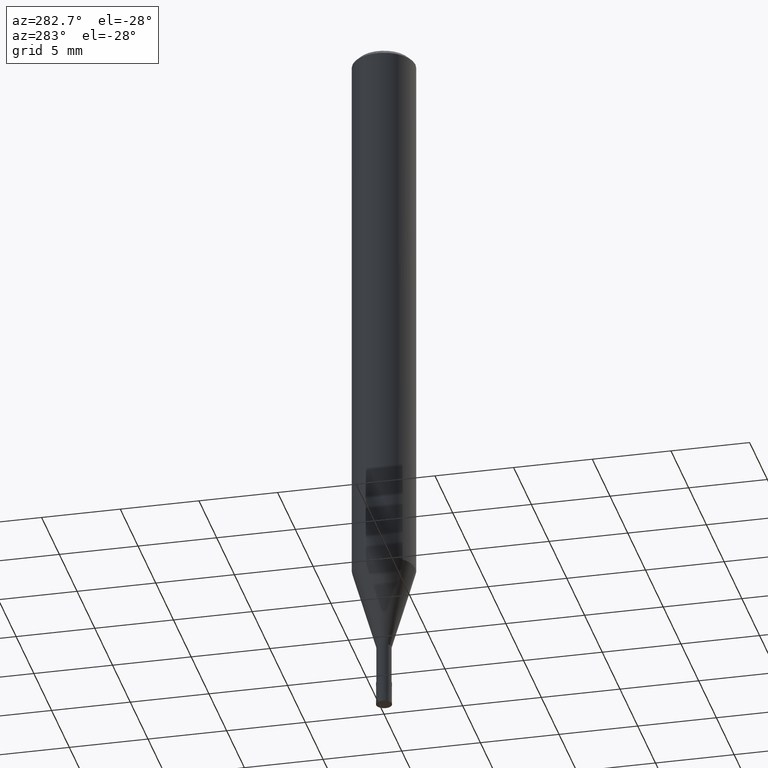
[diagram: clean part render]
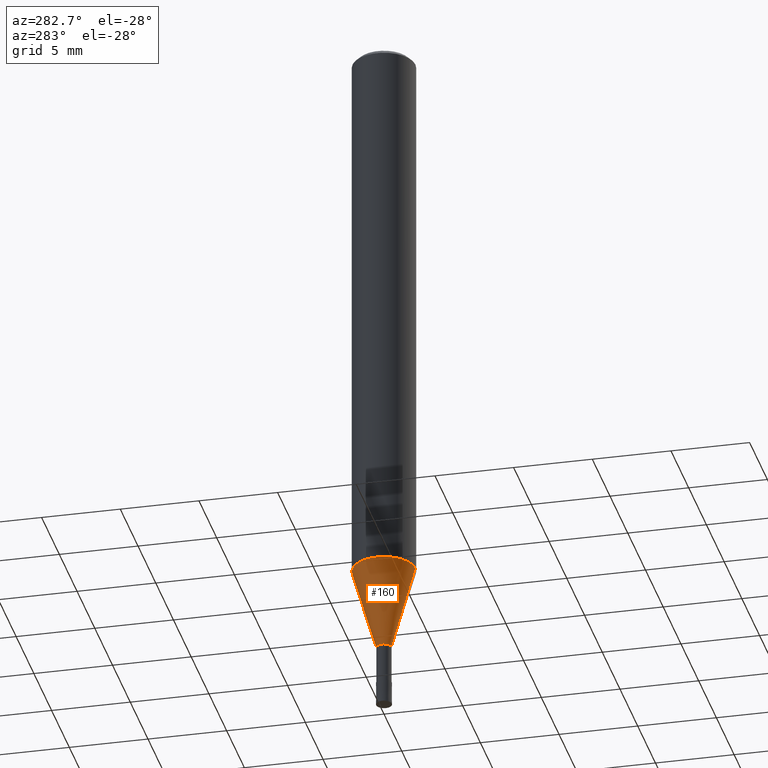
[diagram: same view with one face highlighted and labeled with its STEP entity id]
A machine part, auxiliary view. The second image highlights one B-rep face of the part: STEP entity #160.
In plain terms, the highlighted conical surface has half-angle 16.001 deg.
Its self-contained STEP definition (entity closure, byte-faithful):
#106=EDGE_CURVE('',#170,#112,#244,.T.);
#112=VERTEX_POINT('',#251);
#124=EDGE_CURVE('',#204,#112,#264,.T.);
#148=EDGE_CURVE('',#170,#152,#293,.T.);
#150=EDGE_CURVE('',#152,#204,#295,.T.);
#152=VERTEX_POINT('',#297);
#160=ADVANCED_FACE('',(#305),#306,.T.);
#170=VERTEX_POINT('',#318);
#204=VERTEX_POINT('',#356);
#244=CIRCLE('',#393,0.47495);
#251=CARTESIAN_POINT('',(0.0,0.47495,-41.0));
#264=LINE('',#418,#419);
#293=LINE('',#455,#456);
#295=CIRCLE('',#459,1.99995);
#297=CARTESIAN_POINT('',(2.44915147732706E-016,-1.99995,-35.682));
#305=FACE_OUTER_BOUND('',#470,.T.);
#306=CONICAL_SURFACE('',#471,1.23745,0.279267977304115);
#318=CARTESIAN_POINT('',(5.81626787747938E-017,-0.47495,-41.0));
#356=CARTESIAN_POINT('',(0.0,1.99995,-35.682));
#393=AXIS2_PLACEMENT_3D('',#554,#555,#556);
#418=CARTESIAN_POINT('',(-1.5153891325375E-016,1.23745,-38.341));
#419=VECTOR('',#583,1.0);
#455=CARTESIAN_POINT('',(1.5153891325375E-016,-1.23745,-38.341));
#456=VECTOR('',#628,1.0);
#459=AXIS2_PLACEMENT_3D('',#629,#630,#631);
#470=EDGE_LOOP('',(#640,#641,#642,#643));
#471=AXIS2_PLACEMENT_3D('',#644,#645,#646);
#554=CARTESIAN_POINT('',(0.0,0.0,-41.0));
#555=DIRECTION('',(0.0,0.0,-1.0));
#556=DIRECTION('',(0.0,1.0,0.0));
#583=DIRECTION('',(3.37565264353533E-017,-0.275652060190515,-0.961257479405349));
#628=DIRECTION('',(3.37565264353533E-017,-0.275652060190515,0.961257479405349));
#629=CARTESIAN_POINT('',(0.0,0.0,-35.682));
#630=DIRECTION('',(0.0,0.0,-1.0));
#631=DIRECTION('',(0.0,1.0,0.0));
#640=ORIENTED_EDGE('',*,*,#124,.T.);
#641=ORIENTED_EDGE('',*,*,#106,.F.);
#642=ORIENTED_EDGE('',*,*,#148,.T.);
#643=ORIENTED_EDGE('',*,*,#150,.T.);
#644=CARTESIAN_POINT('',(0.0,0.0,-38.341));
#645=DIRECTION('',(-0.0,-0.0,1.0));
#646=DIRECTION('',(0.0,1.0,0.0));